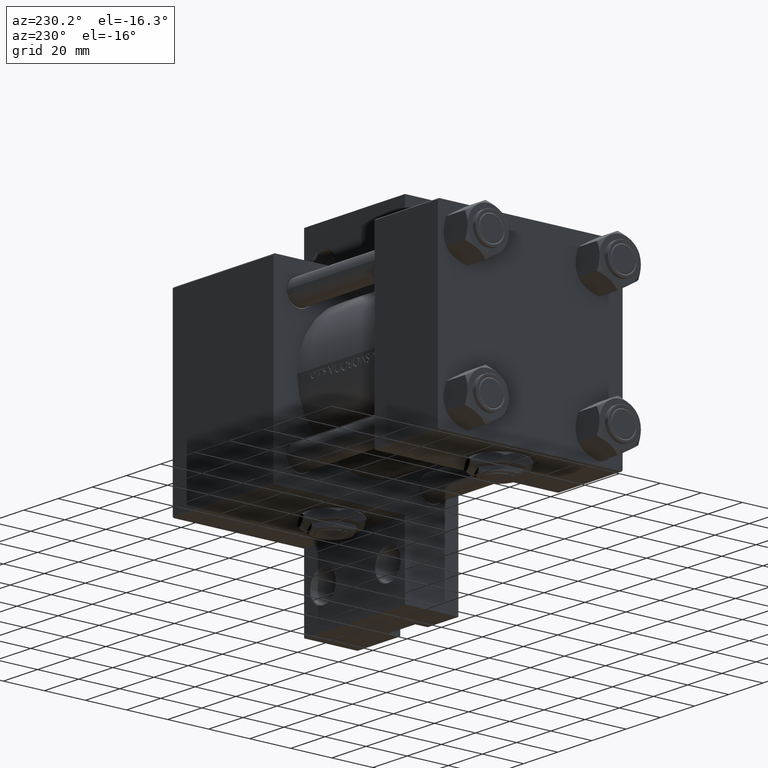
[diagram: clean part render]
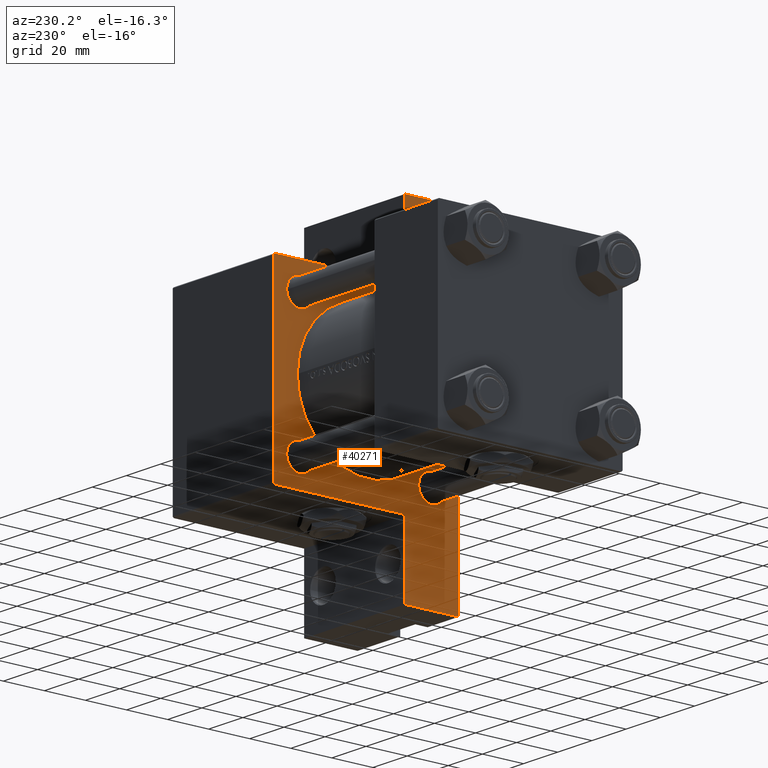
[diagram: same view with one face highlighted and labeled with its STEP entity id]
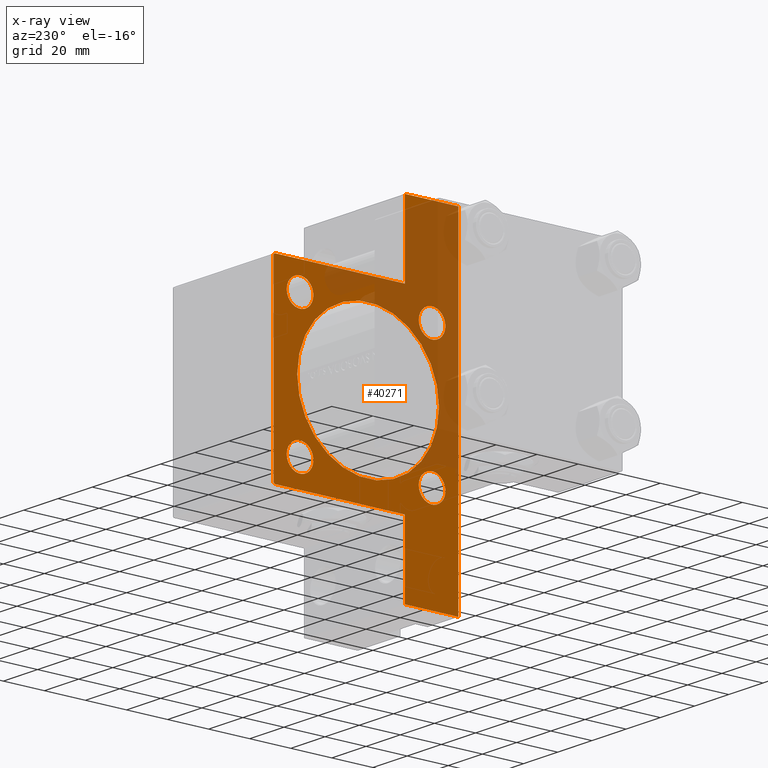
[diagram: x-ray of the same camera — body ghosted, the highlighted face saturated]
A machine part, auxiliary view. The second image highlights one B-rep face of the part: STEP entity #40271.
The next image is the same camera in x-ray: the body ghosted, the highlighted face saturated — about 40% of this face is hidden behind the body in this view.
In plain terms, the highlighted planar face has unit normal (-1, 0, -0).
Its self-contained STEP definition (entity closure, byte-faithful):
#76 = DIRECTION ( 'NONE',  ( 0.000000000000000000, 7.709882115452478166E-17, -1.000000000000000000 ) ) ;
#114 = LINE ( 'NONE', #19480, #44612 ) ;
#329 = EDGE_LOOP ( 'NONE', ( #8509, #11864 ) ) ;
#459 = DIRECTION ( 'NONE',  ( 0.000000000000000000, 0.000000000000000000, -1.000000000000000000 ) ) ;
#528 = CARTESIAN_POINT ( 'NONE',  ( 96.00000000000000000, -32.14999999999997726, -32.15000000000001279 ) ) ;
#653 = ORIENTED_EDGE ( 'NONE', *, *, #36008, .F. ) ;
#755 = CARTESIAN_POINT ( 'NONE',  ( 96.00000000000000000, 0.000000000000000000, 0.000000000000000000 ) ) ;
#880 = AXIS2_PLACEMENT_3D ( 'NONE', #13158, #28498, #43830 ) ;
#897 = EDGE_LOOP ( 'NONE', ( #24454, #25324, #39543, #23365, #9720, #24663, #653, #9680, #24890, #42797 ) ) ;
#985 = FACE_BOUND ( 'NONE', #7643, .T. ) ;
#1828 = VERTEX_POINT ( 'NONE', #25602 ) ;
#2065 = CARTESIAN_POINT ( 'NONE',  ( 96.00000000000000000, 32.14999999999999147, -32.15000000000000568 ) ) ;
#2600 = CARTESIAN_POINT ( 'NONE',  ( 96.00000000000000000, 32.14999999999999147, 25.65000000000000213 ) ) ;
#3175 = VECTOR ( 'NONE', #46387, 1000.000000000000000 ) ;
#3284 = CIRCLE ( 'NONE', #880, 6.500000000000012434 ) ;
#3419 = VERTEX_POINT ( 'NONE', #2600 ) ;
#3478 = DIRECTION ( 'NONE',  ( 1.000000000000000000, 0.000000000000000000, 0.000000000000000000 ) ) ;
#3521 = DIRECTION ( 'NONE',  ( 0.000000000000000000, -1.000000000000000000, -1.541976423090495140E-16 ) ) ;
#3737 = VECTOR ( 'NONE', #459, 1000.000000000000000 ) ;
#3752 = CARTESIAN_POINT ( 'NONE',  ( 96.00000000000000000, 4.225031457058367344E-15, -35.50000000000000711 ) ) ;
#3765 = VERTEX_POINT ( 'NONE', #7064 ) ;
#3942 = VERTEX_POINT ( 'NONE', #32505 ) ;
#4204 = LINE ( 'NONE', #34878, #15746 ) ;
#4435 = CIRCLE ( 'NONE', #12481, 34.49999999999999289 ) ;
#4747 = DIRECTION ( 'NONE',  ( 1.000000000000000000, 0.000000000000000000, 0.000000000000000000 ) ) ;
#4812 = EDGE_CURVE ( 'NONE', #1828, #26683, #34808, .T. ) ;
#4956 = EDGE_CURVE ( 'NONE', #9212, #46039, #3284, .T. ) ;
#5101 = DIRECTION ( 'NONE',  ( 0.000000000000000000, 0.000000000000000000, 1.000000000000000000 ) ) ;
#5421 = CARTESIAN_POINT ( 'NONE',  ( 96.00000000000000000, 79.99999999999998579, -45.00000000000000000 ) ) ;
#5963 = AXIS2_PLACEMENT_3D ( 'NONE', #21610, #29377, #48248 ) ;
#6319 = AXIS2_PLACEMENT_3D ( 'NONE', #18595, #3478, #49507 ) ;
#6620 = EDGE_CURVE ( 'NONE', #3765, #22497, #22591, .T. ) ;
#7064 = CARTESIAN_POINT ( 'NONE',  ( 96.00000000000000000, -32.14999999999997726, -38.65000000000002700 ) ) ;
#7073 = EDGE_CURVE ( 'NONE', #11478, #12711, #30802, .T. ) ;
#7338 = ORIENTED_EDGE ( 'NONE', *, *, #24734, .T. ) ;
#7643 = EDGE_LOOP ( 'NONE', ( #43599, #7338 ) ) ;
#7676 = CARTESIAN_POINT ( 'NONE',  ( 96.00000000000000000, 79.99999999999998579, -19.00000000000000000 ) ) ;
#7891 = VERTEX_POINT ( 'NONE', #31143 ) ;
#7907 = CIRCLE ( 'NONE', #42425, 6.499999999999999112 ) ;
#8509 = ORIENTED_EDGE ( 'NONE', *, *, #44013, .T. ) ;
#8644 = CARTESIAN_POINT ( 'NONE',  ( 96.00000000000000000, -32.14999999999997726, 32.15000000000001279 ) ) ;
#9143 = EDGE_CURVE ( 'NONE', #13885, #3419, #7907, .T. ) ;
#9212 = VERTEX_POINT ( 'NONE', #35951 ) ;
#9680 = ORIENTED_EDGE ( 'NONE', *, *, #32673, .T. ) ;
#9720 = ORIENTED_EDGE ( 'NONE', *, *, #47942, .T. ) ;
#10738 = CARTESIAN_POINT ( 'NONE',  ( 96.00000000000000000, 44.50000000000001421, 45.00000000000000000 ) ) ;
#11478 = VERTEX_POINT ( 'NONE', #49177 ) ;
#11864 = ORIENTED_EDGE ( 'NONE', *, *, #28418, .T. ) ;
#12481 = AXIS2_PLACEMENT_3D ( 'NONE', #13340, #40236, #33179 ) ;
#12706 = EDGE_LOOP ( 'NONE', ( #13276, #45305 ) ) ;
#12711 = VERTEX_POINT ( 'NONE', #3752 ) ;
#12749 = AXIS2_PLACEMENT_3D ( 'NONE', #8644, #23745, #5101 ) ;
#12844 = DIRECTION ( 'NONE',  ( 1.000000000000000000, 0.000000000000000000, 0.000000000000000000 ) ) ;
#13158 = CARTESIAN_POINT ( 'NONE',  ( 96.00000000000000000, 32.14999999999999147, -32.15000000000000568 ) ) ;
#13276 = ORIENTED_EDGE ( 'NONE', *, *, #9143, .T. ) ;
#13340 = CARTESIAN_POINT ( 'NONE',  ( 96.00000000000000000, 0.000000000000000000, -1.000000000000007772 ) ) ;
#13427 = DIRECTION ( 'NONE',  ( 3.965082230804131699E-16, 1.000000000000000000, 0.000000000000000000 ) ) ;
#13878 = DIRECTION ( 'NONE',  ( 1.000000000000000000, 0.000000000000000000, 0.000000000000000000 ) ) ;
#13885 = VERTEX_POINT ( 'NONE', #29299 ) ;
#13918 = CIRCLE ( 'NONE', #29954, 6.500000000000012434 ) ;
#14152 = CARTESIAN_POINT ( 'NONE',  ( 96.00000000000000000, -32.14999999999997726, 25.64999999999999858 ) ) ;
#14187 = EDGE_CURVE ( 'NONE', #41808, #21815, #28992, .T. ) ;
#15305 = CARTESIAN_POINT ( 'NONE',  ( 96.00000000000000000, -32.14999999999997726, -25.64999999999999858 ) ) ;
#15605 = EDGE_CURVE ( 'NONE', #41808, #18209, #22709, .T. ) ;
#15746 = VECTOR ( 'NONE', #15791, 1000.000000000000114 ) ;
#15791 = DIRECTION ( 'NONE',  ( 0.000000000000000000, 0.7071067811865474617, -0.7071067811865474617 ) ) ;
#15858 = FACE_BOUND ( 'NONE', #32858, .T. ) ;
#16875 = CARTESIAN_POINT ( 'NONE',  ( 96.00000000000000000, 32.14999999999999147, 32.15000000000000568 ) ) ;
#17248 = VECTOR ( 'NONE', #40068, 1000.000000000000114 ) ;
#18209 = VERTEX_POINT ( 'NONE', #40904 ) ;
#18407 = CARTESIAN_POINT ( 'NONE',  ( 95.99999999999998579, -79.99999999999998579, -45.00000000000000000 ) ) ;
#18573 = EDGE_CURVE ( 'NONE', #46039, #9212, #13918, .T. ) ;
#18595 = CARTESIAN_POINT ( 'NONE',  ( 96.00000000000000000, 0.000000000000000000, -1.000000000000007772 ) ) ;
#18853 = EDGE_CURVE ( 'NONE', #25256, #26146, #20634, .T. ) ;
#19232 = CIRCLE ( 'NONE', #44061, 6.500000000000012434 ) ;
#19389 = LINE ( 'NONE', #38228, #30199 ) ;
#19408 = VERTEX_POINT ( 'NONE', #10738 ) ;
#19480 = CARTESIAN_POINT ( 'NONE',  ( 95.99999999999998579, -79.99999999999998579, -19.00000000000000000 ) ) ;
#19617 = EDGE_CURVE ( 'NONE', #7891, #1828, #20522, .T. ) ;
#20522 = LINE ( 'NONE', #21254, #38036 ) ;
#20634 = LINE ( 'NONE', #43488, #31568 ) ;
#21254 = CARTESIAN_POINT ( 'NONE',  ( 96.00000000000000000, 45.00000000000001421, 45.00000000000000000 ) ) ;
#21610 = CARTESIAN_POINT ( 'NONE',  ( 96.00000000000000000, 32.14999999999999147, 32.15000000000000568 ) ) ;
#21790 = CARTESIAN_POINT ( 'NONE',  ( 95.99999999999998579, -79.99999999999998579, -19.00000000000000000 ) ) ;
#21815 = VERTEX_POINT ( 'NONE', #28564 ) ;
#22497 = VERTEX_POINT ( 'NONE', #15305 ) ;
#22591 = CIRCLE ( 'NONE', #24977, 6.500000000000012434 ) ;
#22709 = LINE ( 'NONE', #35011, #38956 ) ;
#22749 = DIRECTION ( 'NONE',  ( 0.000000000000000000, 0.000000000000000000, -1.000000000000000000 ) ) ;
#23365 = ORIENTED_EDGE ( 'NONE', *, *, #4812, .T. ) ;
#23745 = DIRECTION ( 'NONE',  ( 1.000000000000000000, 0.000000000000000000, 0.000000000000000000 ) ) ;
#24454 = ORIENTED_EDGE ( 'NONE', *, *, #46755, .F. ) ;
#24663 = ORIENTED_EDGE ( 'NONE', *, *, #18853, .T. ) ;
#24664 = AXIS2_PLACEMENT_3D ( 'NONE', #755, #32164, #47005 ) ;
#24727 = CARTESIAN_POINT ( 'NONE',  ( 96.00000000000000000, -44.74999999999999289, 44.74999999999999289 ) ) ;
#24734 = EDGE_CURVE ( 'NONE', #12711, #11478, #4435, .T. ) ;
#24890 = ORIENTED_EDGE ( 'NONE', *, *, #15605, .F. ) ;
#24977 = AXIS2_PLACEMENT_3D ( 'NONE', #528, #31195, #42009 ) ;
#25256 = VERTEX_POINT ( 'NONE', #5421 ) ;
#25324 = ORIENTED_EDGE ( 'NONE', *, *, #46132, .T. ) ;
#25601 = CIRCLE ( 'NONE', #12749, 6.500000000000012434 ) ;
#25602 = CARTESIAN_POINT ( 'NONE',  ( 96.00000000000000000, 45.00000000000001421, -18.99999999999997513 ) ) ;
#26146 = VERTEX_POINT ( 'NONE', #18407 ) ;
#26683 = VERTEX_POINT ( 'NONE', #37626 ) ;
#27406 = FACE_BOUND ( 'NONE', #41883, .T. ) ;
#27629 = DIRECTION ( 'NONE',  ( 0.000000000000000000, 0.000000000000000000, 1.000000000000000000 ) ) ;
#27642 = FACE_BOUND ( 'NONE', #12706, .T. ) ;
#27647 = CIRCLE ( 'NONE', #5963, 6.499999999999999112 ) ;
#28418 = EDGE_CURVE ( 'NONE', #36145, #3942, #33656, .T. ) ;
#28463 = VECTOR ( 'NONE', #13427, 1000.000000000000000 ) ;
#28498 = DIRECTION ( 'NONE',  ( 1.000000000000000000, 0.000000000000000000, 0.000000000000000000 ) ) ;
#28564 = CARTESIAN_POINT ( 'NONE',  ( 96.00000000000000000, -44.49999999999997158, 44.99999999999998579 ) ) ;
#28753 = CARTESIAN_POINT ( 'NONE',  ( 95.99999999999998579, -79.99999999999998579, -19.00000000000000000 ) ) ;
#28992 = LINE ( 'NONE', #24727, #17248 ) ;
#29299 = CARTESIAN_POINT ( 'NONE',  ( 96.00000000000000000, 32.14999999999999147, 38.65000000000001279 ) ) ;
#29377 = DIRECTION ( 'NONE',  ( 1.000000000000000000, 0.000000000000000000, 0.000000000000000000 ) ) ;
#29954 = AXIS2_PLACEMENT_3D ( 'NONE', #2065, #13878, #40528 ) ;
#30199 = VECTOR ( 'NONE', #3521, 1000.000000000000000 ) ;
#30802 = CIRCLE ( 'NONE', #6319, 34.49999999999999289 ) ;
#31143 = CARTESIAN_POINT ( 'NONE',  ( 96.00000000000000000, 45.00000000000001421, 44.50000000000000000 ) ) ;
#31195 = DIRECTION ( 'NONE',  ( 1.000000000000000000, 0.000000000000000000, 0.000000000000000000 ) ) ;
#31568 = VECTOR ( 'NONE', #38999, 1000.000000000000000 ) ;
#31664 = PLANE ( 'NONE',  #24664 ) ;
#32164 = DIRECTION ( 'NONE',  ( -1.000000000000000000, 0.000000000000000000, -0.000000000000000000 ) ) ;
#32197 = DIRECTION ( 'NONE',  ( 0.000000000000000000, 0.000000000000000000, 1.000000000000000000 ) ) ;
#32370 = VERTEX_POINT ( 'NONE', #21790 ) ;
#32505 = CARTESIAN_POINT ( 'NONE',  ( 96.00000000000000000, -32.14999999999997726, 38.65000000000002700 ) ) ;
#32673 = EDGE_CURVE ( 'NONE', #32370, #18209, #43581, .T. ) ;
#32858 = EDGE_LOOP ( 'NONE', ( #39304, #44281 ) ) ;
#33179 = DIRECTION ( 'NONE',  ( 0.000000000000000000, 0.000000000000000000, -1.000000000000000000 ) ) ;
#33295 = EDGE_CURVE ( 'NONE', #3419, #13885, #27647, .T. ) ;
#33656 = CIRCLE ( 'NONE', #36033, 6.500000000000012434 ) ;
#34653 = LINE ( 'NONE', #34890, #3737 ) ;
#34808 = LINE ( 'NONE', #7676, #3175 ) ;
#34878 = CARTESIAN_POINT ( 'NONE',  ( 96.00000000000000000, 44.75000000000001421, 44.75000000000001421 ) ) ;
#34890 = CARTESIAN_POINT ( 'NONE',  ( 96.00000000000000000, 79.99999999999998579, -19.00000000000000000 ) ) ;
#35011 = CARTESIAN_POINT ( 'NONE',  ( 96.00000000000000000, -45.00000000000000000, 44.99999999999998579 ) ) ;
#35951 = CARTESIAN_POINT ( 'NONE',  ( 96.00000000000000000, 32.14999999999999147, -38.65000000000001990 ) ) ;
#36008 = EDGE_CURVE ( 'NONE', #32370, #26146, #114, .T. ) ;
#36033 = AXIS2_PLACEMENT_3D ( 'NONE', #43379, #39868, #43128 ) ;
#36145 = VERTEX_POINT ( 'NONE', #14152 ) ;
#37626 = CARTESIAN_POINT ( 'NONE',  ( 96.00000000000000000, 79.99999999999998579, -19.00000000000000000 ) ) ;
#38036 = VECTOR ( 'NONE', #47406, 1000.000000000000000 ) ;
#38228 = CARTESIAN_POINT ( 'NONE',  ( 96.00000000000000000, 45.00000000000001421, 45.00000000000000000 ) ) ;
#38956 = VECTOR ( 'NONE', #76, 1000.000000000000000 ) ;
#38999 = DIRECTION ( 'NONE',  ( 0.000000000000000000, -1.000000000000000000, 0.000000000000000000 ) ) ;
#39304 = ORIENTED_EDGE ( 'NONE', *, *, #44592, .T. ) ;
#39543 = ORIENTED_EDGE ( 'NONE', *, *, #19617, .T. ) ;
#39855 = ORIENTED_EDGE ( 'NONE', *, *, #4956, .T. ) ;
#39868 = DIRECTION ( 'NONE',  ( 1.000000000000000000, 0.000000000000000000, 0.000000000000000000 ) ) ;
#40068 = DIRECTION ( 'NONE',  ( -0.000000000000000000, 0.7071067811865474617, 0.7071067811865474617 ) ) ;
#40236 = DIRECTION ( 'NONE',  ( 1.000000000000000000, 0.000000000000000000, 0.000000000000000000 ) ) ;
#40271 = ADVANCED_FACE ( 'NONE', ( #46521, #27642, #27406, #15858, #985, #46758 ), #31664, .T. ) ;
#40435 = CARTESIAN_POINT ( 'NONE',  ( 96.00000000000000000, 32.14999999999999147, -25.64999999999999147 ) ) ;
#40528 = DIRECTION ( 'NONE',  ( 0.000000000000000000, 0.000000000000000000, 1.000000000000000000 ) ) ;
#40904 = CARTESIAN_POINT ( 'NONE',  ( 96.00000000000000000, -45.00000000000000000, -19.00000000000000000 ) ) ;
#41808 = VERTEX_POINT ( 'NONE', #48140 ) ;
#41883 = EDGE_LOOP ( 'NONE', ( #41952, #39855 ) ) ;
#41952 = ORIENTED_EDGE ( 'NONE', *, *, #18573, .T. ) ;
#42009 = DIRECTION ( 'NONE',  ( 0.000000000000000000, 0.000000000000000000, 1.000000000000000000 ) ) ;
#42425 = AXIS2_PLACEMENT_3D ( 'NONE', #16875, #12844, #32197 ) ;
#42797 = ORIENTED_EDGE ( 'NONE', *, *, #14187, .T. ) ;
#43128 = DIRECTION ( 'NONE',  ( 0.000000000000000000, 0.000000000000000000, 1.000000000000000000 ) ) ;
#43379 = CARTESIAN_POINT ( 'NONE',  ( 96.00000000000000000, -32.14999999999997726, 32.15000000000001279 ) ) ;
#43488 = CARTESIAN_POINT ( 'NONE',  ( 96.00000000000000000, 45.00000000000001421, -45.00000000000000000 ) ) ;
#43581 = LINE ( 'NONE', #28753, #28463 ) ;
#43599 = ORIENTED_EDGE ( 'NONE', *, *, #7073, .T. ) ;
#43830 = DIRECTION ( 'NONE',  ( 0.000000000000000000, 0.000000000000000000, 1.000000000000000000 ) ) ;
#44013 = EDGE_CURVE ( 'NONE', #3942, #36145, #25601, .T. ) ;
#44061 = AXIS2_PLACEMENT_3D ( 'NONE', #46742, #4747, #27629 ) ;
#44281 = ORIENTED_EDGE ( 'NONE', *, *, #6620, .T. ) ;
#44592 = EDGE_CURVE ( 'NONE', #22497, #3765, #19232, .T. ) ;
#44612 = VECTOR ( 'NONE', #22749, 1000.000000000000000 ) ;
#45305 = ORIENTED_EDGE ( 'NONE', *, *, #33295, .T. ) ;
#46039 = VERTEX_POINT ( 'NONE', #40435 ) ;
#46132 = EDGE_CURVE ( 'NONE', #19408, #7891, #4204, .T. ) ;
#46387 = DIRECTION ( 'NONE',  ( -0.000000000000000000, 1.000000000000000000, -0.000000000000000000 ) ) ;
#46521 = FACE_BOUND ( 'NONE', #329, .T. ) ;
#46742 = CARTESIAN_POINT ( 'NONE',  ( 96.00000000000000000, -32.14999999999997726, -32.15000000000001279 ) ) ;
#46755 = EDGE_CURVE ( 'NONE', #19408, #21815, #19389, .T. ) ;
#46758 = FACE_OUTER_BOUND ( 'NONE', #897, .T. ) ;
#47005 = DIRECTION ( 'NONE',  ( -0.000000000000000000, 0.000000000000000000, 1.000000000000000000 ) ) ;
#47406 = DIRECTION ( 'NONE',  ( 0.000000000000000000, 0.000000000000000000, -1.000000000000000000 ) ) ;
#47942 = EDGE_CURVE ( 'NONE', #26683, #25256, #34653, .T. ) ;
#48140 = CARTESIAN_POINT ( 'NONE',  ( 96.00000000000000000, -45.00000000000000000, 44.49999999999998579 ) ) ;
#48248 = DIRECTION ( 'NONE',  ( 0.000000000000000000, 0.000000000000000000, 1.000000000000000000 ) ) ;
#49177 = CARTESIAN_POINT ( 'NONE',  ( 96.00000000000000000, 0.000000000000000000, 33.49999999999998579 ) ) ;
#49507 = DIRECTION ( 'NONE',  ( 0.000000000000000000, 0.000000000000000000, -1.000000000000000000 ) ) ;